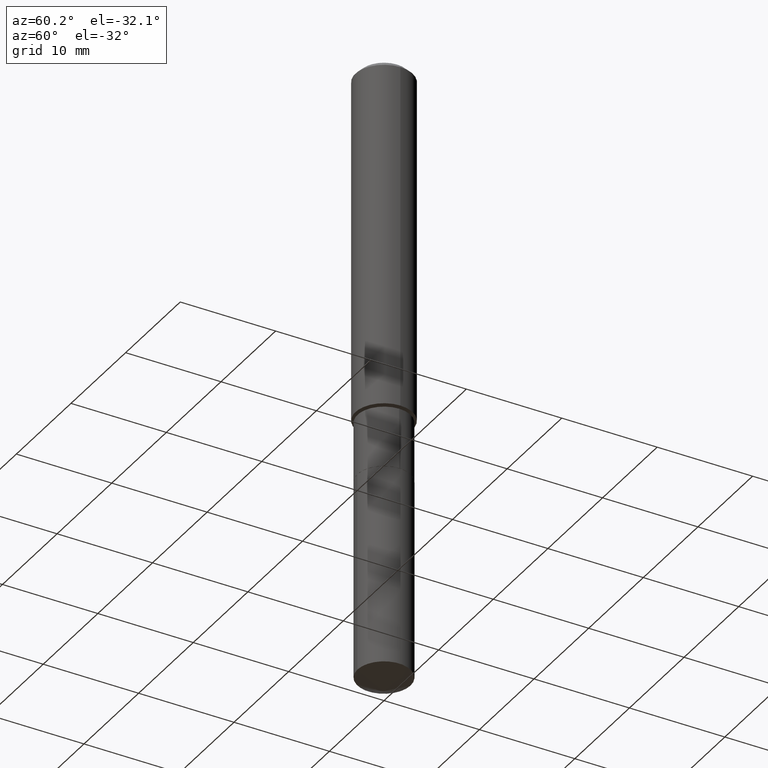
[diagram: clean part render]
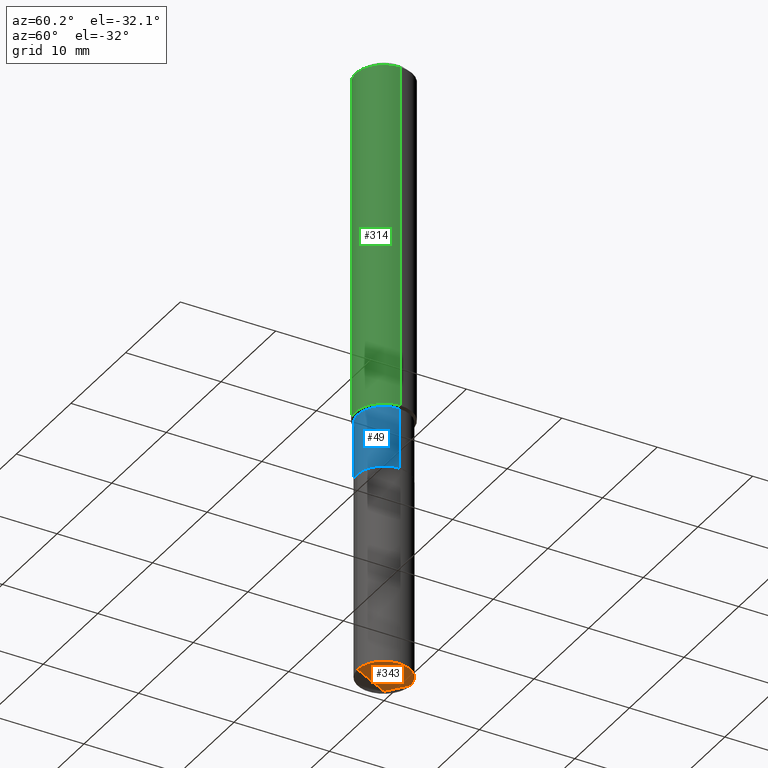
[diagram: same view with three faces highlighted in distinct colors, each labeled with its STEP entity id]
A machine part, auxiliary view with three faces highlighted in distinct colors.
Their STEP definitions:

[orange] entity #343 — the highlighted conical surface has half-angle 62 deg.
#17 = CARTESIAN_POINT ( 'NONE',  ( 6.354712766743684551E-29, -9.071682806789423886E-15, -2.598399999999999821 ) ) ;
#23 = CONICAL_SURFACE ( 'NONE', #149, 74.04434902938338325, 1.082104136236485603 ) ;
#35 = CARTESIAN_POINT ( 'NONE',  ( 6.212184812875433221E-29, -8.868984111651468523E-15, -2.540230988176234384 ) ) ;
#52 = EDGE_CURVE ( 'NONE', #105, #261, #283, .T. ) ;
#81 = DIRECTION ( 'NONE',  ( -6.165590087286829718E-15, -0.8829475928589257672, 0.4694715627858926932 ) ) ;
#98 = CIRCLE ( 'NONE', #360, 0.1093999999999999972 ) ;
#105 = VERTEX_POINT ( 'NONE', #17 ) ;
#118 = CARTESIAN_POINT ( 'NONE',  ( 6.354176072419548755E-29, -9.072451383608331705E-15, -2.598399999999999821 ) ) ;
#123 = DIRECTION ( 'NONE',  ( 6.273719981627762132E-15, 0.8829475928589292089, 0.4694715627858865870 ) ) ;
#137 = DIRECTION ( 'NONE',  ( -2.445625295083006978E-29, 3.491257237834600047E-15, 1.000000000000000000 ) ) ;
#149 = AXIS2_PLACEMENT_3D ( 'NONE', #183, #336, #479 ) ;
#183 = CARTESIAN_POINT ( 'NONE',  ( -8.993001601675724650E-28, 1.283790052604940387E-13, 36.77167874015748339 ) ) ;
#188 = ORIENTED_EDGE ( 'NONE', *, *, #436, .F. ) ;
#210 = VECTOR ( 'NONE', #123, 39.37007874015748143 ) ;
#220 = CARTESIAN_POINT ( 'NONE',  ( 7.773337529216115094E-16, 0.1093999999999911155, -2.540230988176234828 ) ) ;
#261 = VERTEX_POINT ( 'NONE', #220 ) ;
#275 = ORIENTED_EDGE ( 'NONE', *, *, #377, .F. ) ;
#283 = LINE ( 'NONE', #285, #210 ) ;
#285 = CARTESIAN_POINT ( 'NONE',  ( 6.354717472919389250E-29, -9.071682806789427041E-15, -2.598399999999999821 ) ) ;
#298 = EDGE_LOOP ( 'NONE', ( #188, #383, #275 ) ) ;
#336 = DIRECTION ( 'NONE',  ( -2.445625295083006978E-29, 3.491257237834600047E-15, 1.000000000000000000 ) ) ;
#341 = CARTESIAN_POINT ( 'NONE',  ( -7.639361169388152518E-16, -0.1094000000000088374, -2.540230988176233495 ) ) ;
#343 = ADVANCED_FACE ( 'NONE', ( #407 ), #23, .T. ) ;
#347 = LINE ( 'NONE', #118, #422 ) ;
#360 = AXIS2_PLACEMENT_3D ( 'NONE', #35, #137, #437 ) ;
#377 = EDGE_CURVE ( 'NONE', #444, #261, #98, .T. ) ;
#383 = ORIENTED_EDGE ( 'NONE', *, *, #52, .T. ) ;
#407 = FACE_OUTER_BOUND ( 'NONE', #298, .T. ) ;
#422 = VECTOR ( 'NONE', #81, 39.37007874015748854 ) ;
#436 = EDGE_CURVE ( 'NONE', #105, #444, #347, .T. ) ;
#437 = DIRECTION ( 'NONE',  ( -6.982962677686265922E-15, -1.000000000000000000, 4.994237648380736877E-15 ) ) ;
#444 = VERTEX_POINT ( 'NONE', #341 ) ;
#479 = DIRECTION ( 'NONE',  ( -6.982962677686266711E-15, -1.000000000000000000, 3.541896320645568363E-15 ) ) ;

[blue] entity #49 — the highlighted cylindrical surface (edge-blend (fillet) strip) has radius 2.7788 mm, axis along (-0, 0, 1).
#4 = DIRECTION ( 'NONE',  ( -2.445468806185136877E-29, 3.491481338843145188E-15, 1.000000000000000000 ) ) ;
#5 = EDGE_CURVE ( 'NONE', #270, #300, #191, .T. ) ;
#25 = CARTESIAN_POINT ( 'NONE',  ( -0.1093999999999999972, -4.769757224165497309E-15, -1.714299999999999713 ) ) ;
#44 = DIRECTION ( 'NONE',  ( -2.445468806185136877E-29, 3.491481338843145188E-15, 1.000000000000000000 ) ) ;
#46 = AXIS2_PLACEMENT_3D ( 'NONE', #254, #138, #328 ) ;
#49 = ADVANCED_FACE ( 'NONE', ( #477 ), #396, .T. ) ;
#58 = CARTESIAN_POINT ( 'NONE',  ( 0.000000000000000000, 0.000000000000000000, 0.000000000000000000 ) ) ;
#77 = CIRCLE ( 'NONE', #354, 0.1093999999999999972 ) ;
#79 = DIRECTION ( 'NONE',  ( -2.445468806185136597E-29, 3.491481338843145583E-15, 1.000000000000000000 ) ) ;
#85 = CIRCLE ( 'NONE', #46, 0.1093999999999999695 ) ;
#119 = VERTEX_POINT ( 'NONE', #322 ) ;
#138 = DIRECTION ( 'NONE',  ( -2.445468806185136597E-29, 3.491481338843145583E-15, 1.000000000000000000 ) ) ;
#150 = DIRECTION ( 'NONE',  ( 1.000000000000000000, -6.982962677686269866E-15, 0.000000000000000000 ) ) ;
#151 = EDGE_LOOP ( 'NONE', ( #368, #222, #218, #238 ) ) ;
#168 = CARTESIAN_POINT ( 'NONE',  ( 0.1093999999999999695, -5.872671611934168353E-15, -1.463199999999999834 ) ) ;
#170 = DIRECTION ( 'NONE',  ( -2.445468806185136597E-29, 3.491481338843145583E-15, 1.000000000000000000 ) ) ;
#185 = CARTESIAN_POINT ( 'NONE',  ( 4.192267174443178826E-29, -5.985446459178803005E-15, -1.714299999999999713 ) ) ;
#191 = LINE ( 'NONE', #342, #291 ) ;
#198 = VERTEX_POINT ( 'NONE', #168 ) ;
#211 = AXIS2_PLACEMENT_3D ( 'NONE', #58, #170, #323 ) ;
#216 = CARTESIAN_POINT ( 'NONE',  ( -0.1093999999999999695, -4.769757224165497309E-15, -1.463199999999999834 ) ) ;
#218 = ORIENTED_EDGE ( 'NONE', *, *, #416, .T. ) ;
#222 = ORIENTED_EDGE ( 'NONE', *, *, #404, .T. ) ;
#237 = CARTESIAN_POINT ( 'NONE',  ( 0.1093999999999999834, -7.639361169388774732E-16, 5.334537392720753208E-30 ) ) ;
#238 = ORIENTED_EDGE ( 'NONE', *, *, #346, .F. ) ;
#254 = CARTESIAN_POINT ( 'NONE',  ( 3.578209957210091410E-29, -5.108735494995289992E-15, -1.463199999999999834 ) ) ;
#270 = VERTEX_POINT ( 'NONE', #25 ) ;
#272 = LINE ( 'NONE', #237, #308 ) ;
#291 = VECTOR ( 'NONE', #4, 39.37007874015748143 ) ;
#300 = VERTEX_POINT ( 'NONE', #216 ) ;
#308 = VECTOR ( 'NONE', #44, 39.37007874015748143 ) ;
#322 = CARTESIAN_POINT ( 'NONE',  ( 0.1093999999999999972, -6.749382576117681366E-15, -1.714299999999999713 ) ) ;
#323 = DIRECTION ( 'NONE',  ( 1.000000000000000000, -6.982962677686266711E-15, 4.876176775795935793E-29 ) ) ;
#328 = DIRECTION ( 'NONE',  ( 1.000000000000000000, -6.982962677686271444E-15, 0.000000000000000000 ) ) ;
#342 = CARTESIAN_POINT ( 'NONE',  ( -0.1093999999999999834, 7.773337529215494852E-16, -5.381314988738866015E-30 ) ) ;
#346 = EDGE_CURVE ( 'NONE', #300, #198, #85, .T. ) ;
#354 = AXIS2_PLACEMENT_3D ( 'NONE', #185, #79, #150 ) ;
#368 = ORIENTED_EDGE ( 'NONE', *, *, #5, .F. ) ;
#396 = CYLINDRICAL_SURFACE ( 'NONE', #211, 0.1093999999999999834 ) ;
#404 = EDGE_CURVE ( 'NONE', #270, #119, #77, .T. ) ;
#416 = EDGE_CURVE ( 'NONE', #119, #198, #272, .T. ) ;
#477 = FACE_OUTER_BOUND ( 'NONE', #151, .T. ) ;

[green] entity #314 — the highlighted cylindrical surface (edge-blend (fillet) strip) has radius 2.9997 mm, axis along (-0, 0, 1).
#7 = CIRCLE ( 'NONE', #240, 0.1180999999999999966 ) ;
#28 = DIRECTION ( 'NONE',  ( 1.000000000000000000, -6.982962677686266711E-15, 4.876176775795936353E-29 ) ) ;
#36 = EDGE_CURVE ( 'NONE', #332, #348, #7, .T. ) ;
#50 = CARTESIAN_POINT ( 'NONE',  ( 5.776197320209326656E-31, -8.246878922347558061E-17, -0.02362000000000013741 ) ) ;
#55 = CARTESIAN_POINT ( 'NONE',  ( 3.556934378596280140E-29, -5.078359607347354252E-15, -1.454499999999999682 ) ) ;
#72 = VERTEX_POINT ( 'NONE', #174 ) ;
#103 = EDGE_CURVE ( 'NONE', #461, #348, #352, .T. ) ;
#108 = VECTOR ( 'NONE', #239, 39.37007874015748143 ) ;
#133 = CIRCLE ( 'NONE', #302, 0.1181000000000001632 ) ;
#144 = CYLINDRICAL_SURFACE ( 'NONE', #318, 0.1181000000000000799 ) ;
#145 = EDGE_LOOP ( 'NONE', ( #184, #406, #233, #315 ) ) ;
#158 = CARTESIAN_POINT ( 'NONE',  ( 0.1181000000000001632, -5.903047499582104093E-15, -1.454499999999999682 ) ) ;
#164 = EDGE_CURVE ( 'NONE', #72, #461, #133, .T. ) ;
#174 = CARTESIAN_POINT ( 'NONE',  ( -0.1181000000000001632, -4.239208636414675266E-15, -1.454499999999999682 ) ) ;
#175 = CARTESIAN_POINT ( 'NONE',  ( 0.000000000000000000, 0.000000000000000000, 0.000000000000000000 ) ) ;
#184 = ORIENTED_EDGE ( 'NONE', *, *, #468, .F. ) ;
#231 = LINE ( 'NONE', #337, #108 ) ;
#233 = ORIENTED_EDGE ( 'NONE', *, *, #103, .T. ) ;
#239 = DIRECTION ( 'NONE',  ( -2.445468806185136877E-29, 3.491481338843145188E-15, 1.000000000000000000 ) ) ;
#240 = AXIS2_PLACEMENT_3D ( 'NONE', #50, #253, #250 ) ;
#250 = DIRECTION ( 'NONE',  ( 1.000000000000000000, -6.982962677686266711E-15, 0.000000000000000000 ) ) ;
#253 = DIRECTION ( 'NONE',  ( -2.445468806185136597E-29, 3.491481338843145583E-15, 1.000000000000000000 ) ) ;
#302 = AXIS2_PLACEMENT_3D ( 'NONE', #55, #433, #427 ) ;
#314 = ADVANCED_FACE ( 'NONE', ( #363 ), #144, .T. ) ;
#315 = ORIENTED_EDGE ( 'NONE', *, *, #36, .F. ) ;
#318 = AXIS2_PLACEMENT_3D ( 'NONE', #175, #400, #28 ) ;
#332 = VERTEX_POINT ( 'NONE', #405 ) ;
#337 = CARTESIAN_POINT ( 'NONE',  ( -0.1181000000000000799, 8.391509709326788873E-16, -5.809262341591047988E-30 ) ) ;
#348 = VERTEX_POINT ( 'NONE', #487 ) ;
#352 = LINE ( 'NONE', #357, #463 ) ;
#357 = CARTESIAN_POINT ( 'NONE',  ( 0.1181000000000000799, -8.246878922347486570E-16, 5.758764772215004644E-30 ) ) ;
#363 = FACE_OUTER_BOUND ( 'NONE', #145, .T. ) ;
#392 = DIRECTION ( 'NONE',  ( -2.445468806185136877E-29, 3.491481338843145188E-15, 1.000000000000000000 ) ) ;
#400 = DIRECTION ( 'NONE',  ( -2.445468806185136597E-29, 3.491481338843145583E-15, 1.000000000000000000 ) ) ;
#405 = CARTESIAN_POINT ( 'NONE',  ( -0.1180999999999999966, -1.741263227352735474E-15, -0.02362000000000013741 ) ) ;
#406 = ORIENTED_EDGE ( 'NONE', *, *, #164, .T. ) ;
#427 = DIRECTION ( 'NONE',  ( 1.000000000000000000, -6.982962677686263555E-15, 0.000000000000000000 ) ) ;
#433 = DIRECTION ( 'NONE',  ( -2.445468806185136597E-29, 3.491481338843145583E-15, 1.000000000000000000 ) ) ;
#461 = VERTEX_POINT ( 'NONE', #158 ) ;
#463 = VECTOR ( 'NONE', #392, 39.37007874015748143 ) ;
#468 = EDGE_CURVE ( 'NONE', #72, #332, #231, .T. ) ;
#487 = CARTESIAN_POINT ( 'NONE',  ( 0.1180999999999999966, -9.071566814582237199E-16, -0.02362000000000013741 ) ) ;